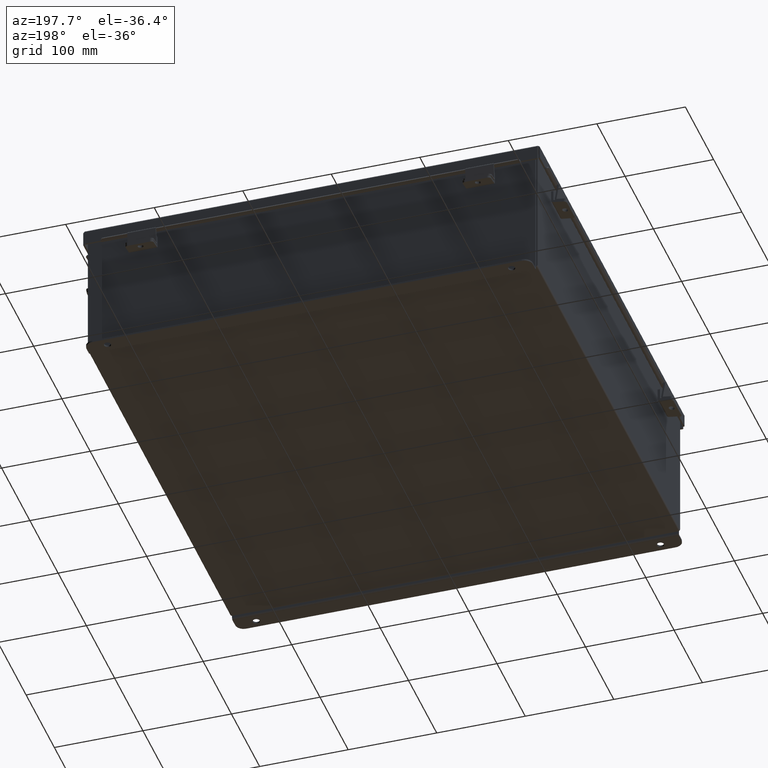
[diagram: clean part render]
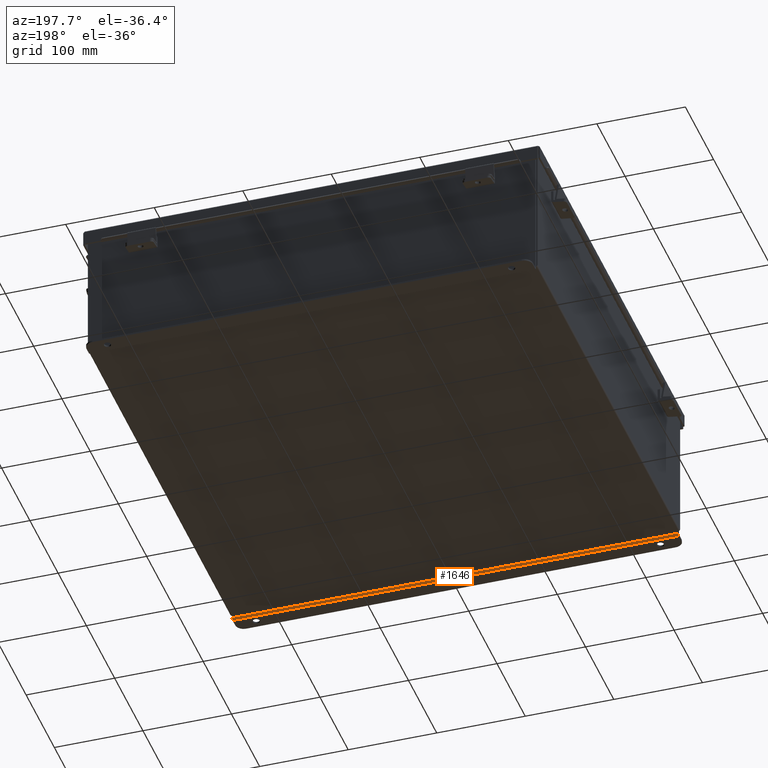
[diagram: same view with one face highlighted and labeled with its STEP entity id]
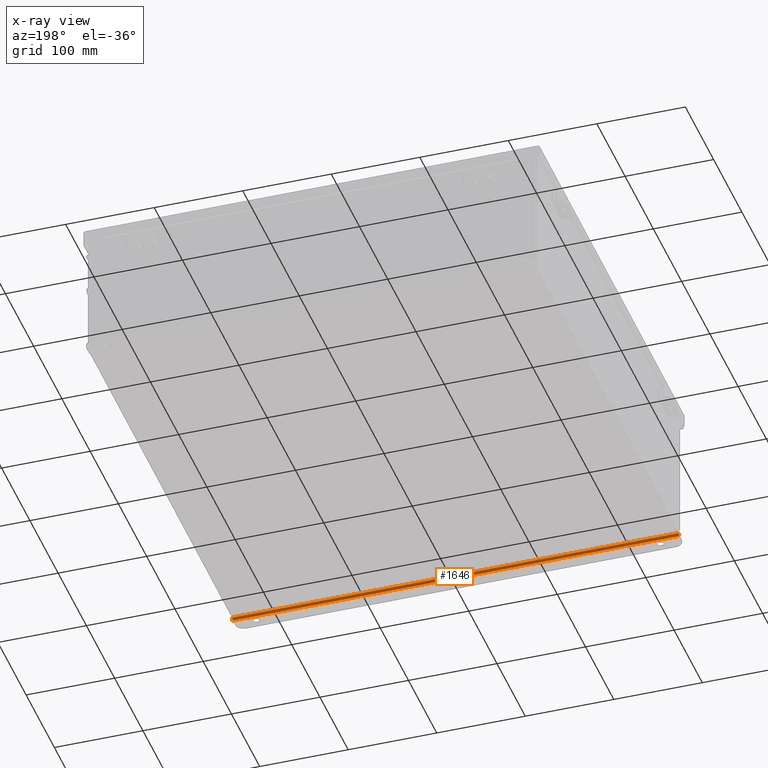
[diagram: x-ray of the same camera — body ghosted, the highlighted face saturated]
A machine part, auxiliary view. The second image highlights one B-rep face of the part: STEP entity #1646.
The next image is the same camera in x-ray: the body ghosted, the highlighted face saturated — about 0% of this face is hidden behind the body in this view.
In plain terms, the highlighted cylindrical surface (edge-blend (fillet) strip) has radius 2.2276 mm, axis along (1, 0, -0).
Its self-contained STEP definition (entity closure, byte-faithful):
#723 = VERTEX_POINT ( 'NONE', #9613 ) ;
#883 = DIRECTION ( 'NONE',  ( 1.000000000000000000, -0.0000000000000000000, -0.0000000000000000000 ) ) ;
#927 = CIRCLE ( 'NONE', #8696, 0.08770000000000026400 ) ;
#1091 = DIRECTION ( 'NONE',  ( 0.0000000000000000000, -3.699053013085864000E-015, -1.000000000000000000 ) ) ;
#1646 = ADVANCED_FACE ( 'NONE', ( #5785 ), #5552, .T. ) ;
#2436 = LINE ( 'NONE', #8447, #4458 ) ;
#2637 = ORIENTED_EDGE ( 'NONE', *, *, #2927, .F. ) ;
#2654 = VERTEX_POINT ( 'NONE', #5579 ) ;
#2927 = EDGE_CURVE ( 'NONE', #2654, #723, #4693, .T. ) ;
#3190 = ORIENTED_EDGE ( 'NONE', *, *, #6559, .T. ) ;
#3578 = CARTESIAN_POINT ( 'NONE',  ( -9.925299999999992900, 0.01300000000000001500, -3.099299999999999900 ) ) ;
#3599 = CARTESIAN_POINT ( 'NONE',  ( 9.925300000000000000, 0.01300000000000062700, -3.187000000000000300 ) ) ;
#3734 = CARTESIAN_POINT ( 'NONE',  ( 9.925300000000000000, -0.07470000000000008600, -3.099299999999999900 ) ) ;
#3860 = DIRECTION ( 'NONE',  ( 1.000000000000000000, -0.0000000000000000000, -0.0000000000000000000 ) ) ;
#4155 = CARTESIAN_POINT ( 'NONE',  ( -9.925299999999996500, 0.01300000000000001500, -3.099299999999999900 ) ) ;
#4281 = AXIS2_PLACEMENT_3D ( 'NONE', #3578, #8917, #4346 ) ;
#4346 = DIRECTION ( 'NONE',  ( 0.0000000000000000000, 0.0000000000000000000, 1.000000000000000000 ) ) ;
#4458 = VECTOR ( 'NONE', #3860, 39.37007874015748100 ) ;
#4693 = CIRCLE ( 'NONE', #4281, 0.08770000000000026400 ) ;
#5003 = VERTEX_POINT ( 'NONE', #3734 ) ;
#5430 = CARTESIAN_POINT ( 'NONE',  ( 9.925300000000000000, 0.01300000000000001500, -3.099299999999999900 ) ) ;
#5552 = CYLINDRICAL_SURFACE ( 'NONE', #6425, 0.08770000000000026400 ) ;
#5579 = CARTESIAN_POINT ( 'NONE',  ( -9.925299999999992900, 0.01300000000000062700, -3.187000000000000300 ) ) ;
#5776 = CARTESIAN_POINT ( 'NONE',  ( 9.925300000000000000, 0.01299999999999968500, -3.187000000000000300 ) ) ;
#5785 = FACE_OUTER_BOUND ( 'NONE', #6071, .T. ) ;
#6071 = EDGE_LOOP ( 'NONE', ( #8764, #2637, #3190, #9064 ) ) ;
#6190 = DIRECTION ( 'NONE',  ( 0.0000000000000000000, 0.0000000000000000000, 1.000000000000000000 ) ) ;
#6425 = AXIS2_PLACEMENT_3D ( 'NONE', #4155, #7152, #1091 ) ;
#6559 = EDGE_CURVE ( 'NONE', #2654, #8905, #8189, .T. ) ;
#6779 = EDGE_CURVE ( 'NONE', #5003, #8905, #927, .T. ) ;
#7152 = DIRECTION ( 'NONE',  ( -1.000000000000000000, 0.0000000000000000000, 0.0000000000000000000 ) ) ;
#7947 = VECTOR ( 'NONE', #8935, 39.37007874015748100 ) ;
#8189 = LINE ( 'NONE', #3599, #7947 ) ;
#8447 = CARTESIAN_POINT ( 'NONE',  ( -9.925299999999996500, -0.07470000000000008600, -3.099299999999999900 ) ) ;
#8478 = EDGE_CURVE ( 'NONE', #723, #5003, #2436, .T. ) ;
#8696 = AXIS2_PLACEMENT_3D ( 'NONE', #5430, #883, #6190 ) ;
#8764 = ORIENTED_EDGE ( 'NONE', *, *, #8478, .F. ) ;
#8905 = VERTEX_POINT ( 'NONE', #5776 ) ;
#8917 = DIRECTION ( 'NONE',  ( -1.000000000000000000, 0.0000000000000000000, 0.0000000000000000000 ) ) ;
#8935 = DIRECTION ( 'NONE',  ( 1.000000000000000000, -0.0000000000000000000, -0.0000000000000000000 ) ) ;
#9064 = ORIENTED_EDGE ( 'NONE', *, *, #6779, .F. ) ;
#9613 = CARTESIAN_POINT ( 'NONE',  ( -9.925299999999992900, -0.07470000000000008600, -3.099299999999999900 ) ) ;